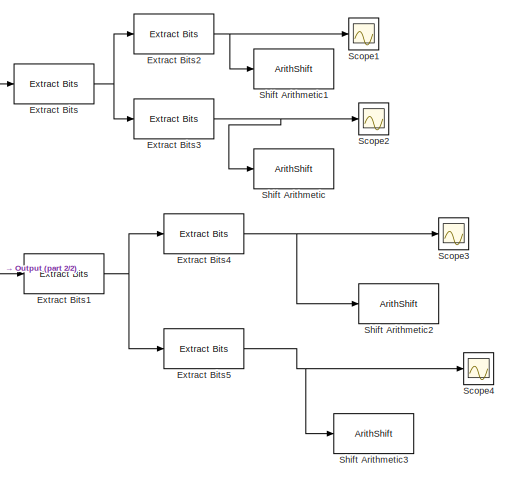
[diagram: root canvas - part 1/2, right side, full height]
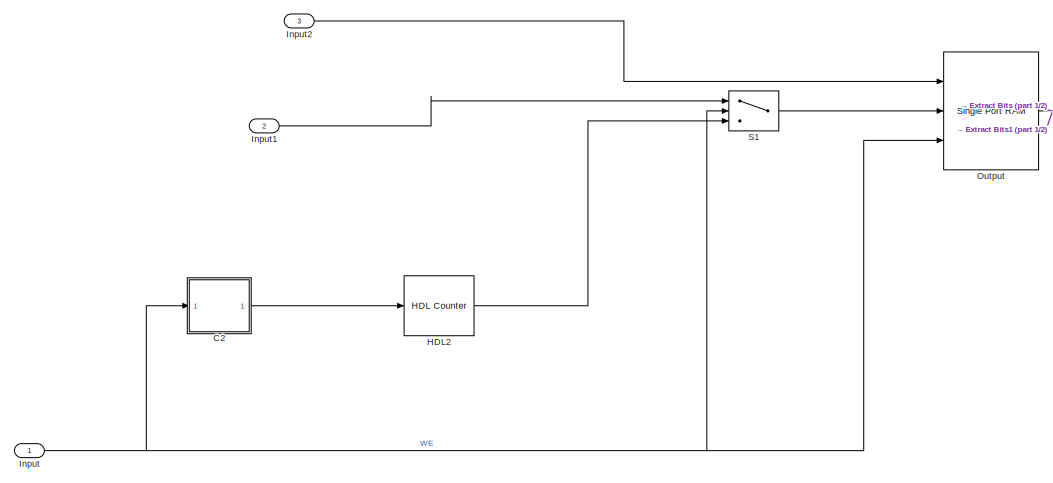
[diagram: root canvas - part 2/2, left side, full height]
MODEL slx_063512e7061a
KIND model
CONFIG AbsTol = auto
CONFIG EnableMultiTasking = off
CONFIG FixedStep = auto
CONFIG MaxStep = auto
CONFIG MinStep = auto
CONFIG RelTol = 1e-3
CONFIG SampleTimeConstraint = Unconstrained
CONFIG SolverName = VariableStepAuto
CONFIG StartTime = 0.0
CONFIG StopTime = 50
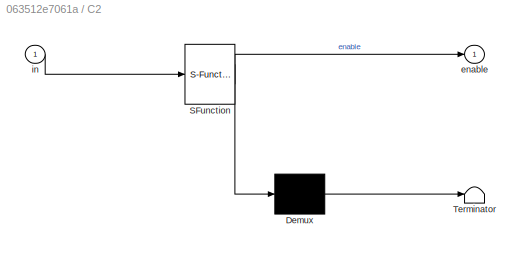
BLOCK [SubSystem] C2
  ErrorFcn = Stateflow.Translate.translate
  PermitHierarchicalResolution = ExplicitOnly
  Ports = [1, 1]
  RequestExecContextInheritance = off
  SFBlockType = Chart
  TreatAsAtomicUnit = on
BLOCK [Demux] C2/ Demux 
  Outputs = 1
  Ports = [1, 1]
BLOCK [S-Function] C2/ SFunction 
  EnableBusSupport = on
  FunctionName = sf_sfun
  PortCounts = [1 2]
  Ports = [1, 2]
  SFcnIsStateOwnerBlock = off
  SFunctionDeploymentMode = off
  Tag = Stateflow S-Function 1
BLOCK [Terminator] C2/ Terminator 
BLOCK [Outport] C2/enable
BLOCK [Inport] C2/in
BLOCK [Reference] Extract Bits  REF=simulink/Logic and Bit
Operations/Extract Bits
  Ports = [1, 1]
  SourceBlock = simulink/Logic and Bit\nOperations/Extract Bits
  SourceProductBaseCode = SL
  SourceType = Extract Bits
BLOCK [Reference] Extract Bits1  REF=simulink/Logic and Bit
Operations/Extract Bits
  Ports = [1, 1]
  SourceBlock = simulink/Logic and Bit\nOperations/Extract Bits
  SourceProductBaseCode = SL
  SourceType = Extract Bits
BLOCK [Reference] Extract Bits2  REF=simulink/Logic and Bit
Operations/Extract Bits
  Ports = [1, 1]
  SourceBlock = simulink/Logic and Bit\nOperations/Extract Bits
  SourceProductBaseCode = SL
  SourceType = Extract Bits
BLOCK [Reference] Extract Bits3  REF=simulink/Logic and Bit
Operations/Extract Bits
  Ports = [1, 1]
  SourceBlock = simulink/Logic and Bit\nOperations/Extract Bits
  SourceProductBaseCode = SL
  SourceType = Extract Bits
BLOCK [Reference] Extract Bits4  REF=simulink/Logic and Bit
Operations/Extract Bits
  Ports = [1, 1]
  SourceBlock = simulink/Logic and Bit\nOperations/Extract Bits
  SourceProductBaseCode = SL
  SourceType = Extract Bits
BLOCK [Reference] Extract Bits5  REF=simulink/Logic and Bit
Operations/Extract Bits
  Ports = [1, 1]
  SourceBlock = simulink/Logic and Bit\nOperations/Extract Bits
  SourceProductBaseCode = SL
  SourceType = Extract Bits
BLOCK [Reference] HDL2  REF=hdlsllib/Sources/HDL Counter
  Ports = [1, 1]
  SourceBlock = hdlsllib/Sources/HDL Counter
  SourceProductBaseCode = SL
  SourceType = HDL Counter
BLOCK [Inport] Input
  OutDataTypeStr = boolean
BLOCK [Inport] Input1
  Port = 2
BLOCK [Inport] Input2
  OutDataTypeStr = fixdt(1,32,24)
  Port = 3
BLOCK [Reference] Output  REF=hdlsllib/HDL RAMs/Single Port RAM
  Ports = [3, 1]
  SourceBlock = hdlsllib/HDL RAMs/Single Port RAM
  SourceProductBaseCode = SL
  SourceType = Single-port RAM
BLOCK [Switch] S1
  Criteria = u2 ~= 0
  InputSameDT = off
  SaturateOnIntegerOverflow = off
BLOCK [Scope] Scope1
  Floating = off
  NumInputPorts = 1
  Ports = [1]
  ScopeSpecificationString = Simulink.scopes.TimeScopeBlockCfg('CurrentConfiguration', extmgr.ConfigurationSet(extmgr.Configuration('Core','General UI',true),extmgr.Configuration('Core','Source UI',true),extmgr.Configuration('Sources','WiredSimulink',true,'DataLoggingVariableName','ScopeData1'),extmgr.Configuration('Visuals','Time Domain',true,'SerializedDisplays',{struct('MinYLimReal','-124125184.00000','MaxYLimReal','111712...<+1427ch>
BLOCK [Scope] Scope2
  Floating = off
  NumInputPorts = 1
  Ports = [1]
  ScopeSpecificationString = Simulink.scopes.TimeScopeBlockCfg('CurrentConfiguration', extmgr.ConfigurationSet(extmgr.Configuration('Core','General UI',true),extmgr.Configuration('Core','Source UI',true),extmgr.Configuration('Sources','WiredSimulink',true,'DataLoggingVariableName','ScopeData1'),extmgr.Configuration('Visuals','Time Domain',true,'SerializedDisplays',{struct('MinYLimReal','-124125184.00000','MaxYLimReal','111712...<+1427ch>
BLOCK [Scope] Scope3
  Floating = off
  NumInputPorts = 1
  Ports = [1]
  ScopeSpecificationString = Simulink.scopes.TimeScopeBlockCfg('CurrentConfiguration', extmgr.ConfigurationSet(extmgr.Configuration('Core','General UI',true),extmgr.Configuration('Core','Source UI',true),extmgr.Configuration('Sources','WiredSimulink',true,'DataLoggingVariableName','ScopeData2'),extmgr.Configuration('Visuals','Time Domain',true,'SerializedDisplays',{struct('MinYLimReal','-124125184.00000','MaxYLimReal','111712...<+1427ch>
BLOCK [Scope] Scope4
  Floating = off
  NumInputPorts = 1
  Ports = [1]
  ScopeSpecificationString = Simulink.scopes.TimeScopeBlockCfg('CurrentConfiguration', extmgr.ConfigurationSet(extmgr.Configuration('Core','General UI',true),extmgr.Configuration('Core','Source UI',true),extmgr.Configuration('Sources','WiredSimulink',true,'DataLoggingVariableName','ScopeData3'),extmgr.Configuration('Visuals','Time Domain',true,'SerializedDisplays',{struct('MinYLimReal','-124125184.00000','MaxYLimReal','111712...<+1427ch>
BLOCK [ArithShift] Shift Arithmetic
  BinPtShiftNumber = 6
  BitShiftDirection = Left
  InputPortMap = u0
  Ports = [1, 1]
BLOCK [ArithShift] Shift Arithmetic1
  BinPtShiftNumber = 6
  BitShiftDirection = Left
  InputPortMap = u0
  Ports = [1, 1]
BLOCK [ArithShift] Shift Arithmetic2
  BinPtShiftNumber = 6
  BitShiftDirection = Left
  InputPortMap = u0
  Ports = [1, 1]
BLOCK [ArithShift] Shift Arithmetic3
  BinPtShiftNumber = 6
  BitShiftDirection = Left
  InputPortMap = u0
  Ports = [1, 1]
LINE C2:1 -> HDL2:1
NET Extract Bits1:1 -> Extract Bits4:1, Extract Bits5:1
NET Extract Bits2:1 -> Scope1:1, Shift Arithmetic1:1
NET Extract Bits3:1 -> Scope2:1, Shift Arithmetic:1
NET Extract Bits4:1 -> Scope3:1, Shift Arithmetic2:1
NET Extract Bits5:1 -> Scope4:1, Shift Arithmetic3:1
NET Extract Bits:1 -> Extract Bits2:1, Extract Bits3:1
LINE HDL2:1 -> S1:3
LINE Input1:1 -> S1:1
LINE Input2:1 -> Output:1
NET Input:1 -> C2:1, Output:3, S1:2
NET Output:1 -> Extract Bits1:1, Extract Bits:1
LINE S1:1 -> Output:2
note: NET lines group one-source signal fan-out (src -> all destinations, sorted); 1:1 wires keep LINE
CHART C2 states=3 transitions=6
  STATE_LABEL 'default\nenable=true'
  STATE_LABEL 'add\nentry:x=0,enable=false;\nduring :x=x+0.25;\n'
  STATE_LABEL 'x\nenable=false\n'
CHART  states=0 transitions=0
